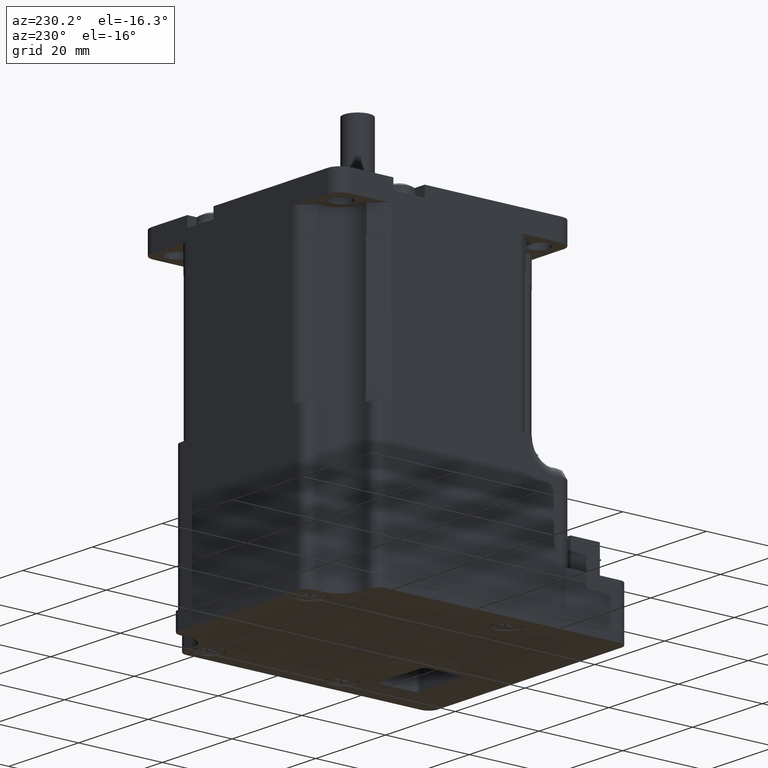
[diagram: clean part render]
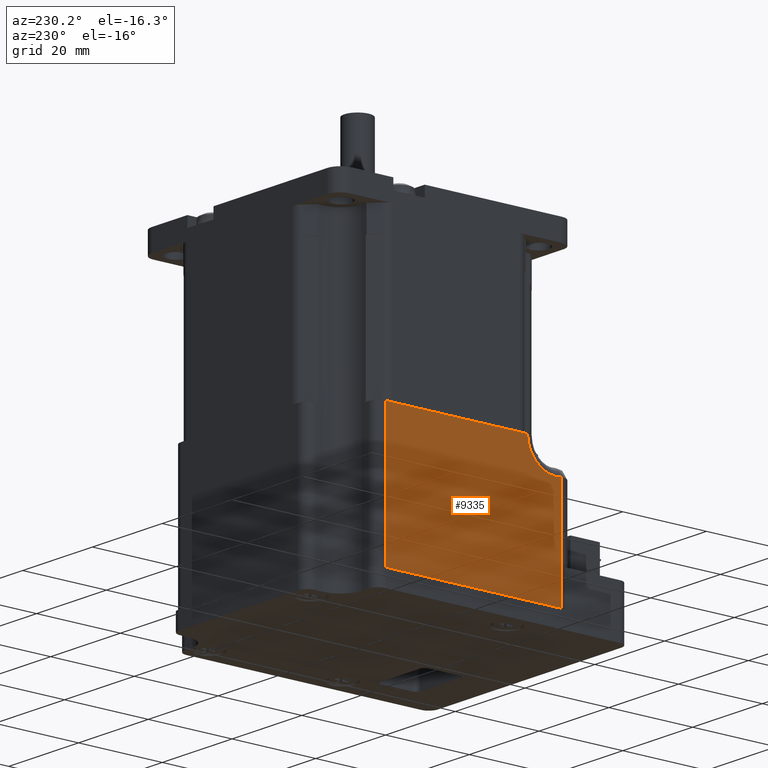
[diagram: same view with one face highlighted and labeled with its STEP entity id]
A machine part, auxiliary view. The second image highlights one B-rep face of the part: STEP entity #9335.
In plain terms, the highlighted planar face has unit normal (-1, 0, 0).
Its self-contained STEP definition (entity closure, byte-faithful):
#8366=CARTESIAN_POINT('',(-28.20000000000001,16.800000000000001,-32.0));
#8367=VERTEX_POINT('',#8366);
#8375=CARTESIAN_POINT('',(-28.20000000000001,-17.083353413629698,-32.0));
#8376=VERTEX_POINT('',#8375);
#8377=CARTESIAN_POINT('',(-28.20000000000001,-17.083353413629698,-32.0));
#8378=DIRECTION('',(0.0,1.0,0.0));
#8379=VECTOR('',#8378,33.883353413629699);
#8380=LINE('',#8377,#8379);
#8381=EDGE_CURVE('',#8376,#8367,#8380,.T.);
#8835=CARTESIAN_POINT('',(-28.20000000000001,-25.199999999999999,-64.0));
#8836=VERTEX_POINT('',#8835);
#8844=CARTESIAN_POINT('',(-28.20000000000001,16.800000000000001,-64.0));
#8845=VERTEX_POINT('',#8844);
#8846=CARTESIAN_POINT('',(-28.20000000000001,-25.199999999999999,-64.0));
#8847=DIRECTION('',(0.0,1.0,0.0));
#8848=VECTOR('',#8847,42.0);
#8849=LINE('',#8846,#8848);
#8850=EDGE_CURVE('',#8836,#8845,#8849,.T.);
#9299=CARTESIAN_POINT('',(-28.20000000000001,16.800000000000001,-32.0));
#9300=DIRECTION('',(0.0,0.0,-1.0));
#9301=VECTOR('',#9300,32.0);
#9302=LINE('',#9299,#9301);
#9303=EDGE_CURVE('',#8367,#8845,#9302,.T.);
#9310=CARTESIAN_POINT('',(-28.20000000000001,-28.20000000000001,-32.0));
#9311=DIRECTION('',(-1.0,0.0,0.0));
#9312=DIRECTION('',(0.0,0.0,-1.0));
#9313=AXIS2_PLACEMENT_3D('',#9310,#9311,#9312);
#9314=PLANE('',#9313);
#9315=CARTESIAN_POINT('',(-28.20000000000001,-25.199999999999999,-38.811754546350116));
#9316=VERTEX_POINT('',#9315);
#9317=CARTESIAN_POINT('',(-28.20000000000001,-25.199999999999999,-64.0));
#9318=DIRECTION('',(0.0,0.0,1.0));
#9319=VECTOR('',#9318,25.188245453649891);
#9320=LINE('',#9317,#9319);
#9321=EDGE_CURVE('',#8836,#9316,#9320,.T.);
#9322=ORIENTED_EDGE('',*,*,#9321,.T.);
#9323=CARTESIAN_POINT('',(-28.20000000000001,-23.999999999936797,-32.0));
#9324=DIRECTION('',(1.0,0.0,0.0));
#9325=DIRECTION('',(0.0,1.0,0.0));
#9326=AXIS2_PLACEMENT_3D('',#9323,#9324,#9325);
#9327=CIRCLE('',#9326,6.916646586307102);
#9328=EDGE_CURVE('',#9316,#8376,#9327,.T.);
#9329=ORIENTED_EDGE('',*,*,#9328,.T.);
#9330=ORIENTED_EDGE('',*,*,#8381,.T.);
#9331=ORIENTED_EDGE('',*,*,#9303,.T.);
#9332=ORIENTED_EDGE('',*,*,#8850,.F.);
#9333=EDGE_LOOP('',(#9322,#9329,#9330,#9331,#9332));
#9334=FACE_OUTER_BOUND('',#9333,.T.);
#9335=ADVANCED_FACE('',(#9334),#9314,.T.);